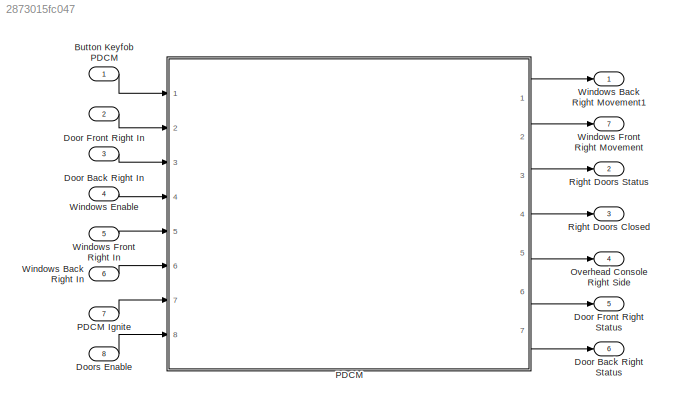
MODEL slx_2873015fc047
KIND model
CONFIG AbsTol = auto
CONFIG EnableMultiTasking = off
CONFIG FixedStep = 0.1
CONFIG MaxStep = auto
CONFIG MinStep = auto
CONFIG RelTol = 1e-3
CONFIG SampleTimeConstraint = Unconstrained
CONFIG Solver = FixedStepAuto
CONFIG SolverName = FixedStepAuto
CONFIG StartTime = 0.0
CONFIG StopTime = 10.0
BLOCK [Inport] Button Keyfob PDCM
  IconDisplay = Port number
BLOCK [Inport] Door Back Right In
  IconDisplay = Port number
  Port = 3
BLOCK [Outport] Door Back Right Status
  IconDisplay = Port number
  Port = 6
BLOCK [Inport] Door Front Right In
  IconDisplay = Port number
  Port = 2
BLOCK [Outport] Door Front Right Status
  IconDisplay = Port number
  Port = 5
BLOCK [Inport] Doors Enable
  IconDisplay = Port number
  Port = 8
BLOCK [Outport] Overhead Console Right Side
  IconDisplay = Port number
  Port = 4
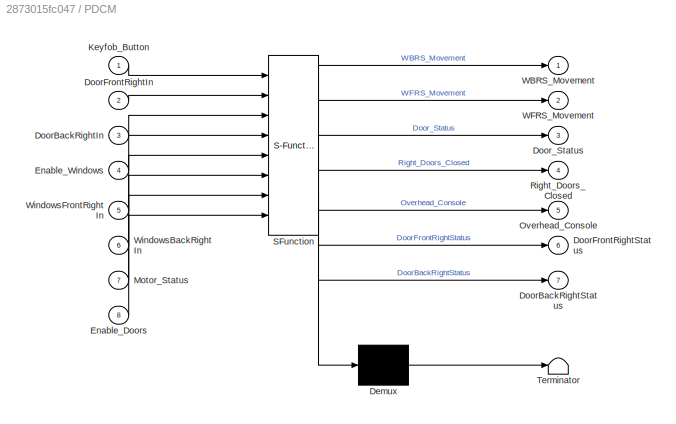
BLOCK [SubSystem] PDCM
  ErrorFcn = Stateflow.Translate.translate
  PermitHierarchicalResolution = ExplicitOnly
  Ports = [8, 7]
  RequestExecContextInheritance = off
  SFBlockType = Chart
  TreatAsAtomicUnit = on
BLOCK [Inport] PDCM Ignite
  IconDisplay = Port number
  Port = 7
BLOCK [Demux] PDCM/ Demux 
  Outputs = 1
  Ports = [1, 1]
BLOCK [S-Function] PDCM/ SFunction 
  EnableBusSupport = on
  FunctionName = sf_sfun
  PortCounts = [8 8]
  Ports = [8, 8]
  SFcnIsStateOwnerBlock = off
  SFunctionDeploymentMode = off
  Tag = Stateflow S-Function 1
BLOCK [Terminator] PDCM/ Terminator 
BLOCK [Inport] PDCM/DoorBackRightIn
  IconDisplay = Port number
  Port = 3
BLOCK [Outport] PDCM/DoorBackRightStatus
  IconDisplay = Port number
  Port = 7
BLOCK [Inport] PDCM/DoorFrontRightIn
  IconDisplay = Port number
  Port = 2
BLOCK [Outport] PDCM/DoorFrontRightStatus
  IconDisplay = Port number
  Port = 6
BLOCK [Outport] PDCM/Door_Status
  IconDisplay = Port number
  Port = 3
BLOCK [Inport] PDCM/Enable_Doors
  IconDisplay = Port number
  Port = 8
BLOCK [Inport] PDCM/Enable_Windows
  IconDisplay = Port number
  Port = 4
BLOCK [Inport] PDCM/Keyfob_Button
  IconDisplay = Port number
BLOCK [Inport] PDCM/Motor_Status
  IconDisplay = Port number
  Port = 7
BLOCK [Outport] PDCM/Overhead_Console
  IconDisplay = Port number
  Port = 5
BLOCK [Outport] PDCM/Right_Doors_Closed
  IconDisplay = Port number
  Port = 4
BLOCK [Outport] PDCM/WBRS_Movement
  IconDisplay = Port number
BLOCK [Outport] PDCM/WFRS_Movement
  IconDisplay = Port number
  Port = 2
BLOCK [Inport] PDCM/WindowsBackRightIn
  IconDisplay = Port number
  Port = 6
BLOCK [Inport] PDCM/WindowsFrontRightIn
  IconDisplay = Port number
  Port = 5
BLOCK [Outport] Right Doors Closed
  IconDisplay = Port number
  Port = 3
BLOCK [Outport] Right Doors Status
  IconDisplay = Port number
  Port = 2
BLOCK [Inport] Windows Back Right In
  IconDisplay = Port number
  Port = 6
BLOCK [Outport] Windows Back Right Movement1
  IconDisplay = Port number
BLOCK [Inport] Windows Enable
  IconDisplay = Port number
  Port = 4
BLOCK [Inport] Windows Front Right In
  IconDisplay = Port number
  Port = 5
BLOCK [Outport] Windows Front Right Movement
  IconDisplay = Port number
  Port = 7
LINE Button Keyfob PDCM:1 -> PDCM:1
LINE Door Back Right In:1 -> PDCM:3
LINE Door Front Right In:1 -> PDCM:2
LINE Doors Enable:1 -> PDCM:8
LINE PDCM Ignite:1 -> PDCM:7
LINE PDCM:1 -> Windows Back Right Movement1:1
LINE PDCM:2 -> Windows Front Right Movement:1
LINE PDCM:3 -> Right Doors Status:1
LINE PDCM:4 -> Right Doors Closed:1
LINE PDCM:5 -> Overhead Console Right Side:1
LINE PDCM:6 -> Door Front Right Status:1
LINE PDCM:7 -> Door Back Right Status:1
LINE Windows Back Right In:1 -> PDCM:6
LINE Windows Enable:1 -> PDCM:4
LINE Windows Front Right In:1 -> PDCM:5
CHART PDCM states=16 transitions=27
  STATE_LABEL 'Right_Doors_Enable'
  STATE_LABEL 'Right_Doors_Enable\n\nduring:\n\tif (Car_Unlocked == 1)\n\t    DFRS = DoorFrontRightIn;\n\t    DBRS = DoorBackRightIn;\n\tend\n\tif (DFRS == 1 | DBRS == 1)\n\t    Overhead_Console = 1;\n\t    Door_Status = 1;\n\telse\n\t    Overhead_Console = 0;\n\t    Door_Status = 0;\n\tend\n\tif (DFRS == 1)\n\t    DoorFrontRightStatus = 1;\n\telse\n\t    DoorFrontRightStatus = 0;\n\tend\n\tif (DBRS == 1)\n\t    DoorBackRightStatus = 1;\n\telse\n\t    D...<+29ch>'
  STATE_LABEL 'Windows_Switch_When_TOff\nduring:\nif (aux2==1 &&  time ==1)\n    WFRS_Movement = WindowsFrontRightIn;\n    WBRS_Movement = WindowsBackRightIn;\nelse\n    WFRS_Movement = -1;\n    WBRS_Movement = -1;\nend'
  STATE_LABEL 'count'
  STATE_LABEL 'state_count\nentry :\ntime =0;\nduring :\nif(aux2==1)\n    time =1;\nelse\n    time =0;\nend\n'
  STATE_LABEL 'state_count1\nduring :\n'
  STATE_LABEL '[time==1]'
  STATE_LABEL '[after(10,sec)]{ aux2=0}'
  STATE_LABEL 'Right_Doors_Enable\n\nduring:\n\tif (Car_Unlocked == 1)\n\t    DFRS = DoorFrontRightIn;\n\t    DBRS = DoorBackRightIn;\n\tend\n\tif (DFRS == 1 | DBRS == 1)\n\t    Overhead_Console = 1;\n\t    Door_Status = 1;\n\telse\n\t    Overhead_Console = 0;\n\t    Door_Status = 0;\n\tend\n\tif (DFRS == 1)\n\t    DoorFrontRightStatus = 1;\n\telse\n\t    DoorFrontRightStatus = 0;\n\tend\n\tif (DBRS == 1)\n\t    DoorBackRightStatus = 1;\n\telse\n\t    D...<+29ch>'
  STATE_LABEL 'Windows_Switch_When_TOff\nduring:\nif (aux2==1 &&  time ==1)\n    WFRS_Movement = WindowsFrontRightIn;\n    WBRS_Movement = WindowsBackRightIn;\nelse\n    WFRS_Movement = -1;\n    WBRS_Movement = -1;\nend'
  STATE_LABEL 'count'
  STATE_LABEL 'state_count\nentry :\ntime =0;\nduring :\nif(aux2==1)\n    time =1;\nelse\n    time =0;\nend\n'
  STATE_LABEL 'state_count1\nduring :\n'
  STATE_LABEL '[time==1]'
  STATE_LABEL '[after(10,sec)]{ aux2=0}'
  STATE_LABEL 'state_count\nentry :\ntime =0;\nduring :\nif(aux2==1)\n    time =1;\nelse\n    time =0;\nend\n'
  STATE_LABEL 'state_count1\nduring :\n'
  STATE_LABEL 'Wait_Car_On\nduring:\nif(DFRS == 0 & DBRS == 0)\n    Right_Doors_Closed = 1;\nend\nif(Enable_Windows == 0)\n    WFRS_Movement = -1;\n    WBRS_Movement = -1;\nend\nif (Enable_Windows == 1 && Enable_Doors == 1)\n    AUX = 4 ;\nelseif  (Enable_Windows == 1)\n    AUX = 1;\nelseif (Enable_Doors == 1)\n    AUX = 3;\nelse\n    AUX = 2;\nend\n'
  STATE_LABEL 'State_Unlock_PDCM\nentry:\n\tCar_Unlocked = 1;\n'
  STATE_LABEL 'Lock_Unlock\nentry:\nKeyfob_Button;\nDFRS = 0;\nDBRS = 0;\nDoor_Status = 0;\nWFRS_Movement = -1;\nWBRS_Movement = -1;\nClose_Windows = -1;\naux2 = 0;\nAUX = 0;'
  STATE_LABEL 'Windows_Closed\nentry:\nWFRS_Movement = -1;\nWBRS_Movement = -1;\nClose_Windows = 0;'
  STATE_LABEL 'Windows_Update'
  STATE_LABEL 'state_transition'
  STATE_LABEL 'Windows_Control\nentry:\n\taux1 = 0;\n\tWFRS = WindowsFrontRightIn;\n\tWBRS = WindowsBackRightIn;\nduring:\n\taux1 = 1;\n\tAUX = 2;\n'
  STATE_LABEL 'Right_Doors_Control\nentry:\n\t    DFRS = DoorFrontRightIn;\n\t    DBRS = DoorBackRightIn;\nduring:\n\tif (DFRS == 1 | DBRS == 1)\n\t    Overhead_Console = 1;\n\t    Door_Status = 1;\n\telseif (DFRS == 0 & DBRS == 0)\n\t    Overhead_Console = 0;\n\t    Door_Status = 0;\n\tend\n\tif (DFRS == 1)\n\t    DoorFrontRightStatus = 1;\n\telse\n\t    DoorFrontRightStatus = 0;\n\tend\n\tif (DBRS == 1)\n\t    DoorBackRightStatus = 1;\n\telse\n\t ...<+95ch>'
  STATE_LABEL 'Closing_Windows\nentry:\nWFRS_Movement = 1;\nWBRS_Movement = 1;'
  STATE_LABEL 'State_Lock_PDCM\nentry:\n\tif (DFRS == 0 & DBRS == 0 & Keyfob_Button == 1 )\n\t    Right_Doors_Closed = 1;\n\t    Close_Windows = 1;\n\t    Car_Unlocked = 0;\n\telse\n\t    Close_Windows = 0;\n\t    Right_Doors_Closed = 0;\n\t    Car_Unlocked = 1;\n\tend\n'
